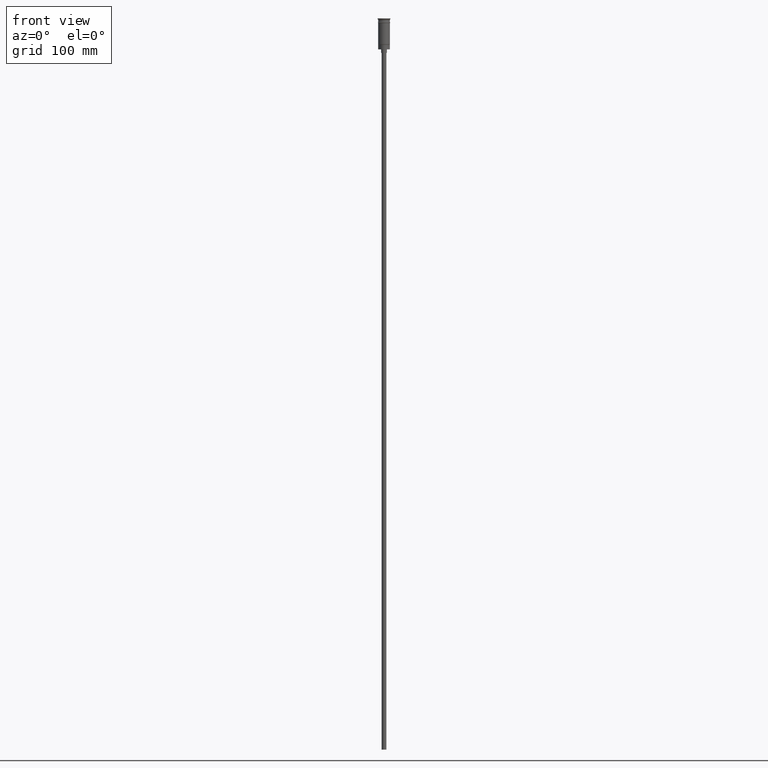
[diagram: clean part render]
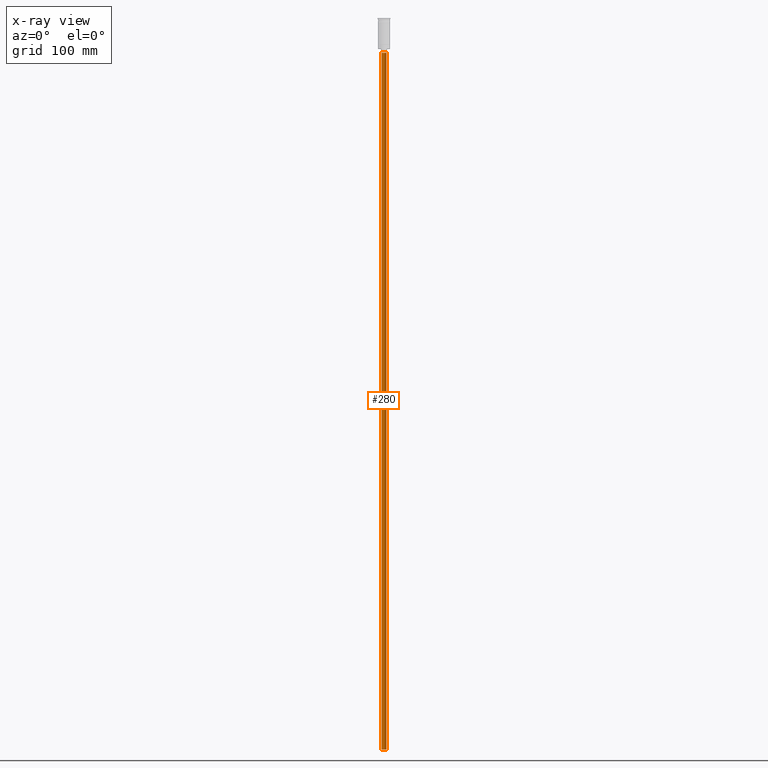
[diagram: x-ray — body ghosted, one internal face saturated and labeled with its STEP entity id]
A machine part, front view, then the same camera in x-ray: the body is ghosted and one INTERNAL B-rep face — a face not visible from any outside direction — is saturated and labeled: STEP entity #280.
In plain terms, the highlighted cylindrical surface (edge-blend (fillet) strip) has radius 2 mm, axis along (-0, -0, 1).
Its self-contained STEP definition (entity closure, byte-faithful):
#14 = CIRCLE ( 'NONE', #904, 2.000000000000000000 ) ;
#54 = CARTESIAN_POINT ( 'NONE',  ( 0.000000000000000000, 0.000000000000000000, -29.50000000000000000 ) ) ;
#87 = ORIENTED_EDGE ( 'NONE', *, *, #994, .T. ) ;
#151 = ORIENTED_EDGE ( 'NONE', *, *, #795, .F. ) ;
#280 = ADVANCED_FACE ( 'NONE', ( #290 ), #1038, .T. ) ;
#289 = LINE ( 'NONE', #932, #468 ) ;
#290 = FACE_OUTER_BOUND ( 'NONE', #465, .T. ) ;
#465 = EDGE_LOOP ( 'NONE', ( #1517, #87, #1482, #151 ) ) ;
#468 = VECTOR ( 'NONE', #811, 1000.000000000000000 ) ;
#472 = VERTEX_POINT ( 'NONE', #969 ) ;
#509 = DIRECTION ( 'NONE',  ( 1.000000000000000000, 0.000000000000000000, 0.000000000000000000 ) ) ;
#534 = CARTESIAN_POINT ( 'NONE',  ( 0.000000000000000000, 0.000000000000000000, -626.5000000000000000 ) ) ;
#541 = DIRECTION ( 'NONE',  ( -1.000000000000000000, 0.000000000000000000, 0.000000000000000000 ) ) ;
#660 = LINE ( 'NONE', #1114, #907 ) ;
#702 = EDGE_CURVE ( 'NONE', #1380, #780, #14, .T. ) ;
#777 = DIRECTION ( 'NONE',  ( -0.000000000000000000, -0.000000000000000000, 1.000000000000000000 ) ) ;
#780 = VERTEX_POINT ( 'NONE', #800 ) ;
#795 = EDGE_CURVE ( 'NONE', #780, #472, #289, .T. ) ;
#800 = CARTESIAN_POINT ( 'NONE',  ( 2.000000000000000000, 0.000000000000000000, -626.5000000000000000 ) ) ;
#811 = DIRECTION ( 'NONE',  ( -0.000000000000000000, -0.000000000000000000, 1.000000000000000000 ) ) ;
#848 = EDGE_CURVE ( 'NONE', #1452, #472, #1538, .T. ) ;
#904 = AXIS2_PLACEMENT_3D ( 'NONE', #1134, #924, #541 ) ;
#907 = VECTOR ( 'NONE', #1420, 1000.000000000000000 ) ;
#924 = DIRECTION ( 'NONE',  ( 0.000000000000000000, 0.000000000000000000, -1.000000000000000000 ) ) ;
#932 = CARTESIAN_POINT ( 'NONE',  ( 2.000000000000000000, 0.000000000000000000, -626.5000000000000000 ) ) ;
#969 = CARTESIAN_POINT ( 'NONE',  ( 2.000000000000000000, 0.000000000000000000, -29.50000000000000000 ) ) ;
#994 = EDGE_CURVE ( 'NONE', #1380, #1452, #660, .T. ) ;
#1038 = CYLINDRICAL_SURFACE ( 'NONE', #1193, 2.000000000000000000 ) ;
#1114 = CARTESIAN_POINT ( 'NONE',  ( -2.000000000000000000, 2.449293598294706414E-16, -626.5000000000000000 ) ) ;
#1134 = CARTESIAN_POINT ( 'NONE',  ( 0.000000000000000000, 0.000000000000000000, -626.5000000000000000 ) ) ;
#1163 = DIRECTION ( 'NONE',  ( -1.000000000000000000, 0.000000000000000000, 0.000000000000000000 ) ) ;
#1193 = AXIS2_PLACEMENT_3D ( 'NONE', #534, #777, #509 ) ;
#1262 = CARTESIAN_POINT ( 'NONE',  ( -2.000000000000000000, 2.449293598294706414E-16, -29.50000000000000000 ) ) ;
#1303 = DIRECTION ( 'NONE',  ( 0.000000000000000000, 0.000000000000000000, -1.000000000000000000 ) ) ;
#1346 = CARTESIAN_POINT ( 'NONE',  ( -2.000000000000000000, 2.449293598294706414E-16, -626.5000000000000000 ) ) ;
#1380 = VERTEX_POINT ( 'NONE', #1346 ) ;
#1420 = DIRECTION ( 'NONE',  ( -0.000000000000000000, -0.000000000000000000, 1.000000000000000000 ) ) ;
#1452 = VERTEX_POINT ( 'NONE', #1262 ) ;
#1466 = AXIS2_PLACEMENT_3D ( 'NONE', #54, #1303, #1163 ) ;
#1482 = ORIENTED_EDGE ( 'NONE', *, *, #848, .T. ) ;
#1517 = ORIENTED_EDGE ( 'NONE', *, *, #702, .F. ) ;
#1538 = CIRCLE ( 'NONE', #1466, 2.000000000000000000 ) ;